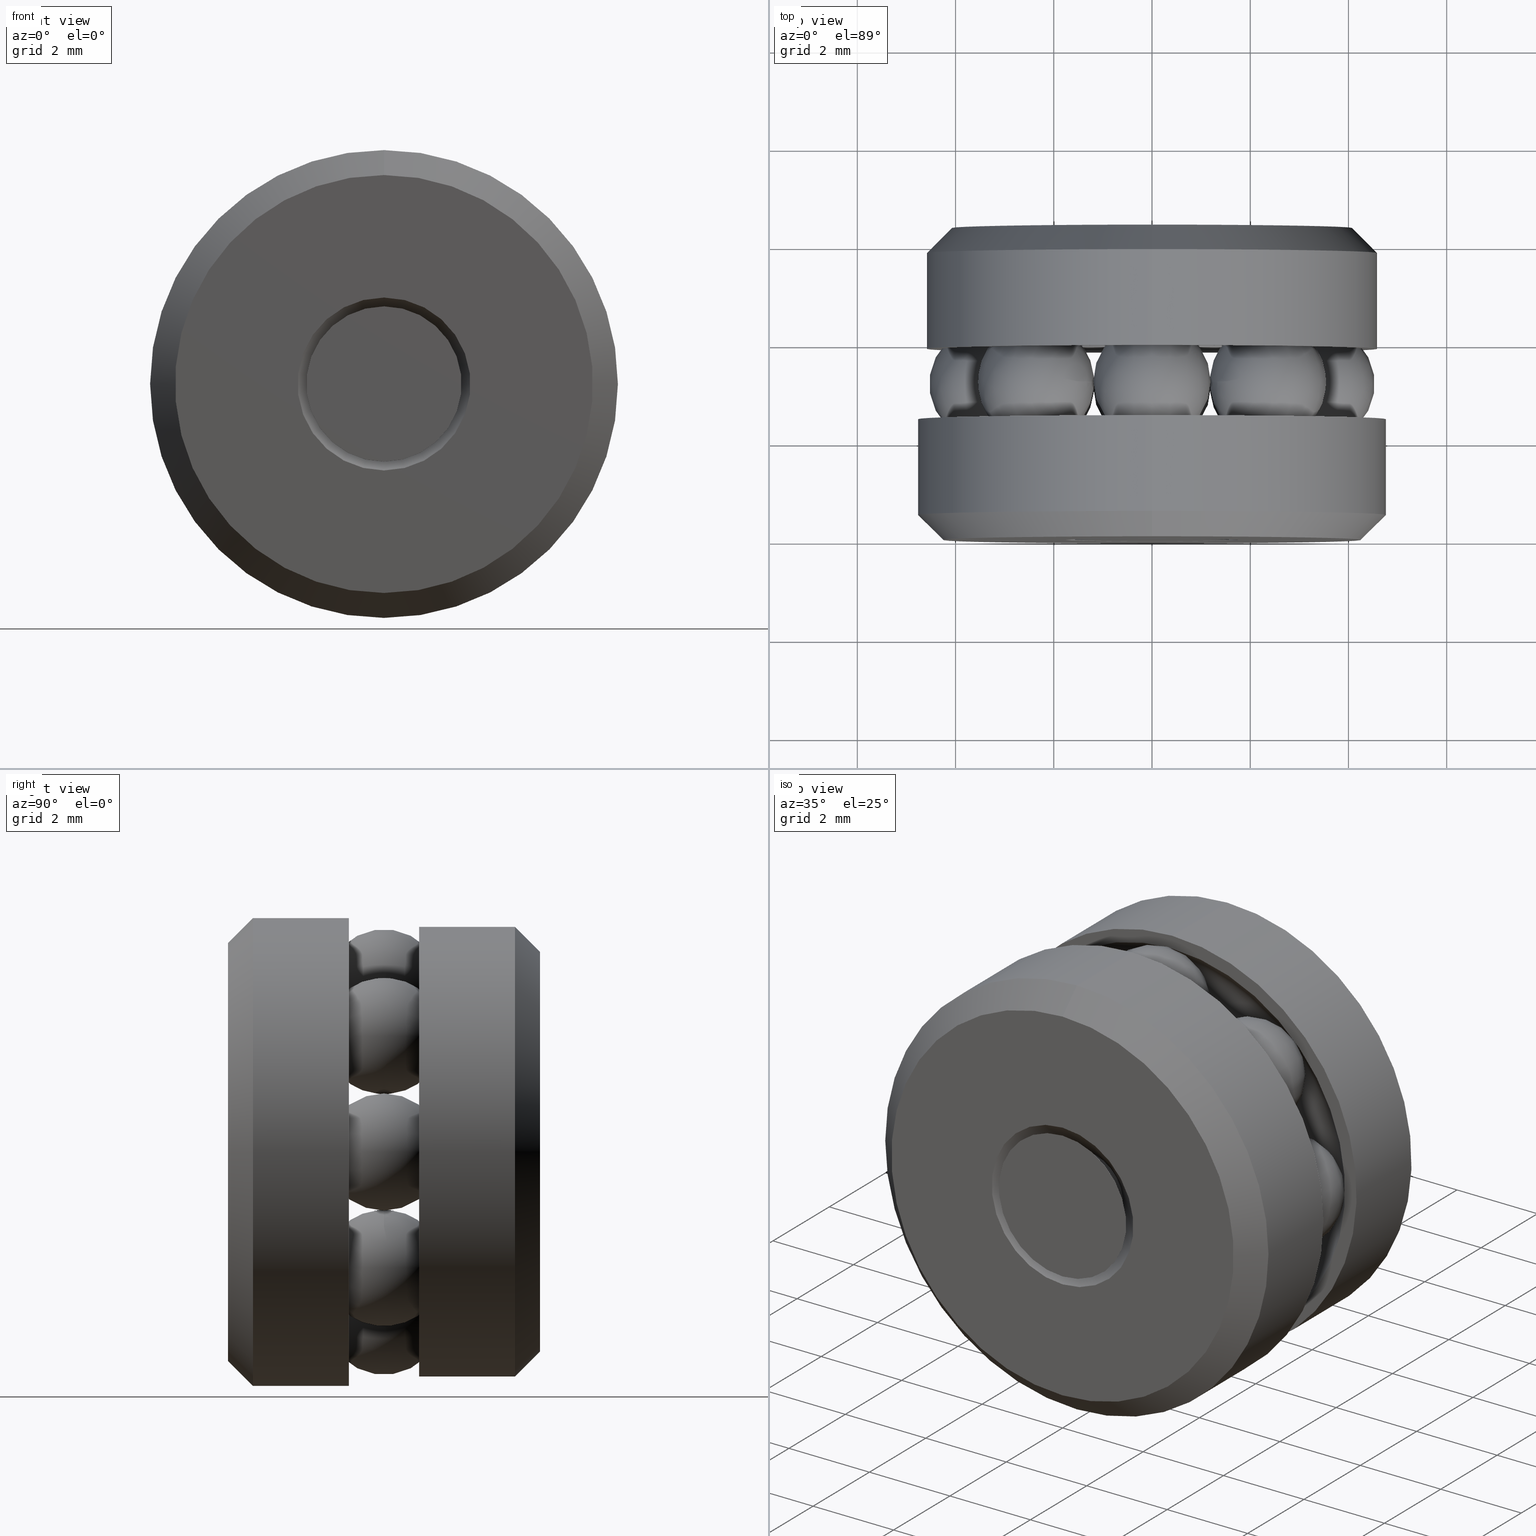
[diagram: canonical four-view strip — front | top / right | iso, engineering-drawing reading convention]
A machine part, canonical four-view strip (front | top / right | iso — engineering-drawing reading convention). The complete STEP part file that produces these views, byte-faithful:
ISO-10303-21;
HEADER;
FILE_DESCRIPTION (( 'STEP AP203' ),
    '1' );
FILE_NAME ('T-114RG_T-114RG-0006.step',
    '2016-02-04T15:34:07',
    ( '' ),
    ( '' ),
    'SwSTEP 2.0',
    'SolidWorks 2016',
    '' );
FILE_SCHEMA (( 'CONFIG_CONTROL_DESIGN' ));
ENDSEC;

DATA;
#1 = DIRECTION ( 'NONE',  ( -0.0000000000000000000, 1.000000000000000000, 0.0000000000000000000 ) ) ;
#2 = ORIENTED_EDGE ( 'NONE', *, *, #201, .F. ) ;
#3 = CALENDAR_DATE ( 2016, 4, 2 ) ;
#4 = ORIENTED_EDGE ( 'NONE', *, *, #308, .F. ) ;
#5 = CONICAL_SURFACE ( 'NONE', #554, 0.1605000000000001100, 0.7853981633974397300 ) ;
#6 = TOROIDAL_SURFACE ( 'NONE', #32, 0.1314999999999999800, 0.04700000000000000700 ) ;
#7 = FACE_OUTER_BOUND ( 'NONE', #297, .T. ) ;
#8 = CARTESIAN_POINT ( 'NONE',  ( -0.1875000000000000300, 0.09679999999999996900, 0.0000000000000000000 ) ) ;
#9 = PRODUCT_DEFINITION_FORMATION_WITH_SPECIFIED_SOURCE ( 'ANY', '', #94, .NOT_KNOWN. ) ;
#10 = EDGE_LOOP ( 'NONE', ( #453 ) ) ;
#11 = CYLINDRICAL_SURFACE ( 'NONE', #204, 0.1804999999999999900 ) ;
#12 = AXIS2_PLACEMENT_3D ( 'NONE', #506, #440, #464 ) ;
#13 = PERSON_AND_ORGANIZATION ( #137, #219 ) ;
#14 = FACE_OUTER_BOUND ( 'NONE', #36, .T. ) ;
#15 = DIRECTION ( 'NONE',  ( 0.0000000000000000000, 0.0000000000000000000, -1.000000000000000000 ) ) ;
#16 = AXIS2_PLACEMENT_3D ( 'NONE', #556, #60, #369 ) ;
#17 = EDGE_LOOP ( 'NONE', ( #289 ) ) ;
#18 = ORIENTED_EDGE ( 'NONE', *, *, #405, .T. ) ;
#19 = DIRECTION ( 'NONE',  ( 0.0000000000000000000, 0.0000000000000000000, 1.000000000000000000 ) ) ;
#20 = AXIS2_PLACEMENT_3D ( 'NONE', #153, #521, #424 ) ;
#21 = DIRECTION ( 'NONE',  ( 0.0000000000000000000, -0.0000000000000000000, -1.000000000000000000 ) ) ;
#22 = DIRECTION ( 'NONE',  ( 1.000000000000000000, 0.0000000000000000000, 0.0000000000000000000 ) ) ;
#23 = CARTESIAN_POINT ( 'NONE',  ( 4.591297960578719100E-016, 0.1249999999999999900, 0.1314999999999999800 ) ) ;
#24 = EDGE_LOOP ( 'NONE', ( #275 ) ) ;
#25 = ORIENTED_EDGE ( 'NONE', *, *, #230, .F. ) ;
#26 = CALENDAR_DATE ( 2016, 4, 2 ) ;
#27 = CARTESIAN_POINT ( 'NONE',  ( 0.0000000000000000000, 0.09679999999999996900, 0.0000000000000000000 ) ) ;
#28 = APPROVAL ( #491, 'UNSPECIFIED' ) ;
#29 = ADVANCED_FACE ( 'NONE', ( ), #228, .T. ) ;
#30 = DIRECTION ( 'NONE',  ( 0.0000000000000000000, -1.000000000000000000, 0.0000000000000000000 ) ) ;
#31 = CARTESIAN_POINT ( 'NONE',  ( 0.0000000000000000000, 0.03125000000000000700, 0.0000000000000000000 ) ) ;
#32 = AXIS2_PLACEMENT_3D ( 'NONE', #179, #336, #562 ) ;
#33 = APPLICATION_CONTEXT ( 'configuration controlled 3d designs of mechanical parts and assemblies' ) ;
#34 = ORIENTED_EDGE ( 'NONE', *, *, #532, .F. ) ;
#35 = CARTESIAN_POINT ( 'NONE',  ( 0.0000000000000000000, 0.09679999999999996900, 0.1690999999999999700 ) ) ;
#36 = EDGE_LOOP ( 'NONE', ( #277 ) ) ;
#37 = ADVANCED_FACE ( 'NONE', ( ), #72, .T. ) ;
#38 = DIRECTION ( 'NONE',  ( 0.0000000000000000000, -1.000000000000000000, 0.0000000000000000000 ) ) ;
#39 = FACE_OUTER_BOUND ( 'NONE', #325, .T. ) ;
#40 = DIRECTION ( 'NONE',  ( 0.0000000000000000000, 0.0000000000000000000, 1.000000000000000000 ) ) ;
#41 = CC_DESIGN_DATE_AND_TIME_ASSIGNMENT ( #563, #167, ( #188 ) ) ;
#42 = ADVANCED_FACE ( 'NONE', ( #225, #237 ), #353, .T. ) ;
#43 = CIRCLE ( 'NONE', #78, 0.03600000000000002500 ) ;
#44 = EDGE_LOOP ( 'NONE', ( #395 ) ) ;
#45 = CARTESIAN_POINT ( 'NONE',  ( 0.0000000000000000000, 0.1531999999999999800, 0.03600000000000002500 ) ) ;
#46 = ADVANCED_FACE ( 'NONE', ( #549, #212 ), #11, .T. ) ;
#47 = FACE_OUTER_BOUND ( 'NONE', #544, .T. ) ;
#48 = ADVANCED_FACE ( 'NONE', ( #218, #91 ), #193, .T. ) ;
#49 = EDGE_LOOP ( 'NONE', ( #465 ) ) ;
#50 = ORIENTED_EDGE ( 'NONE', *, *, #90, .T. ) ;
#51 = AXIS2_PLACEMENT_3D ( 'NONE', #31, #565, #97 ) ;
#52 = CARTESIAN_POINT ( 'NONE',  ( 0.0000000000000000000, 0.2187500000000000300, 0.0000000000000000000 ) ) ;
#53 = VERTEX_POINT ( 'NONE', #378 ) ;
#54 = FACE_BOUND ( 'NONE', #384, .T. ) ;
#55 = VERTEX_POINT ( 'NONE', #545 ) ;
#56 = AXIS2_PLACEMENT_3D ( 'NONE', #447, #392, #121 ) ;
#57 = PLANE ( 'NONE',  #448 ) ;
#58 = ORIENTED_EDGE ( 'NONE', *, *, #370, .F. ) ;
#59 = CLOSED_SHELL ( 'NONE', ( #291 ) ) ;
#60 = DIRECTION ( 'NONE',  ( -0.0000000000000000000, 1.000000000000000000, -0.0000000000000000000 ) ) ;
#61 = VERTEX_POINT ( 'NONE', #200 ) ;
#62 = CC_DESIGN_PERSON_AND_ORGANIZATION_ASSIGNMENT ( #171, #496, ( #9 ) ) ;
#63 = CARTESIAN_POINT ( 'NONE',  ( 0.0000000000000000000, 0.03332106781186544600, 0.0000000000000000000 ) ) ;
#64 = ORIENTED_EDGE ( 'NONE', *, *, #271, .F. ) ;
#65 = CARTESIAN_POINT ( 'NONE',  ( 0.0000000000000000000, 0.02000000000000017400, 0.1875000000000000300 ) ) ;
#66 = PERSON_AND_ORGANIZATION ( #137, #219 ) ;
#67 = AXIS2_PLACEMENT_3D ( 'NONE', #185, #361, #71 ) ;
#68 = CARTESIAN_POINT ( 'NONE',  ( 0.0000000000000000000, 0.2500000000000000000, 0.06932106781186513100 ) ) ;
#69 = VERTEX_POINT ( 'NONE', #216 ) ;
#70 = DIRECTION ( 'NONE',  ( -0.0000000000000000000, 1.000000000000000000, -0.0000000000000000000 ) ) ;
#71 = DIRECTION ( 'NONE',  ( 0.0000000000000000000, 0.0000000000000000000, 1.000000000000000000 ) ) ;
#72 = SPHERICAL_SURFACE ( 'NONE', #114, 0.04699999999999998600 ) ;
#73 = DIRECTION ( 'NONE',  ( 0.7071067811865537900, -0.0000000000000000000, 0.7071067811865413600 ) ) ;
#74 = CC_DESIGN_PERSON_AND_ORGANIZATION_ASSIGNMENT ( #143, #499, ( #9 ) ) ;
#75 = LOCAL_TIME ( 10, 34, 7.000000000000000000, #187 ) ;
#76 = CARTESIAN_POINT ( 'NONE',  ( 0.0000000000000000000, 0.2499999999999999700, 0.1605000000000001100 ) ) ;
#77 = CONICAL_SURFACE ( 'NONE', #184, 0.03600000000000003900, 0.7853981633974430600 ) ;
#78 = AXIS2_PLACEMENT_3D ( 'NONE', #490, #530, #274 ) ;
#79 = MANIFOLD_SOLID_BREP ( 'BALLS[7]', #494 ) ;
#80 = DIRECTION ( 'NONE',  ( 0.0000000000000000000, 0.0000000000000000000, 1.000000000000000000 ) ) ;
#81 = FACE_BOUND ( 'NONE', #243, .T. ) ;
#82 = AXIS2_PLACEMENT_3D ( 'NONE', #528, #38, #15 ) ;
#83 = ADVANCED_FACE ( 'NONE', ( #217, #197 ), #169, .T. ) ;
#84 = CC_DESIGN_PERSON_AND_ORGANIZATION_ASSIGNMENT ( #264, #126, ( #546 ) ) ;
#85 = AXIS2_PLACEMENT_3D ( 'NONE', #190, #238, #173 ) ;
#86 = CARTESIAN_POINT ( 'NONE',  ( 0.0000000000000000000, -2.325607307416975900E-017, 0.0000000000000000000 ) ) ;
#87 = SPHERICAL_SURFACE ( 'NONE', #417, 0.04699999999999998600 ) ;
#88 = DIRECTION ( 'NONE',  ( 0.0000000000000000000, -0.0000000000000000000, -1.000000000000000000 ) ) ;
#89 = PLANE ( 'NONE',  #510 ) ;
#90 = EDGE_CURVE ( 'NONE', #335, #335, #181, .T. ) ;
#91 = FACE_OUTER_BOUND ( 'NONE', #480, .T. ) ;
#92 = EDGE_LOOP ( 'NONE', ( #487 ) ) ;
#93 = DIRECTION ( 'NONE',  ( -0.0000000000000000000, 1.000000000000000000, -0.0000000000000000000 ) ) ;
#94 = PRODUCT ( 'T-114RG_T-114RG-0006', 'T-114RG_T-114RG-0006', '', ( #352 ) ) ;
#95 = AXIS2_PLACEMENT_3D ( 'NONE', #102, #318, #413 ) ;
#96 = FACE_OUTER_BOUND ( 'NONE', #24, .T. ) ;
#97 = DIRECTION ( 'NONE',  ( 0.0000000000000000000, 0.0000000000000000000, -1.000000000000000000 ) ) ;
#98 = FACE_OUTER_BOUND ( 'NONE', #477, .T. ) ;
#99 = LOCAL_TIME ( 10, 34, 7.000000000000000000, #306 ) ;
#100 = FACE_BOUND ( 'NONE', #379, .T. ) ;
#101 = CIRCLE ( 'NONE', #407, 0.1875000000000000300 ) ;
#102 = CARTESIAN_POINT ( 'NONE',  ( -0.06224999999999970800, 0.0000000000000000000, 0.0000000000000000000 ) ) ;
#103 = AXIS2_PLACEMENT_3D ( 'NONE', #303, #553, #333 ) ;
#104 = CYLINDRICAL_SURFACE ( 'NONE', #508, 0.03600000000000003200 ) ;
#105 = AXIS2_PLACEMENT_3D ( 'NONE', #196, #533, #163 ) ;
#106 = DATE_TIME_ROLE ( 'classification_date' ) ;
#107 = DIRECTION ( 'NONE',  ( 0.0000000000000000000, 0.0000000000000000000, 1.000000000000000000 ) ) ;
#108 = CARTESIAN_POINT ( 'NONE',  ( 0.0000000000000000000, 0.02000000000000017400, 0.0000000000000000000 ) ) ;
#109 = FACE_OUTER_BOUND ( 'NONE', #270, .T. ) ;
#110 = FACE_OUTER_BOUND ( 'NONE', #284, .T. ) ;
#111 = CLOSED_SHELL ( 'NONE', ( #37 ) ) ;
#112 = PERSON_AND_ORGANIZATION ( #137, #219 ) ;
#113 = APPROVAL_PERSON_ORGANIZATION ( #13, #519, #189 ) ;
#114 = AXIS2_PLACEMENT_3D ( 'NONE', #263, #73, #535 ) ;
#115 = ADVANCED_FACE ( 'NONE', ( #192, #202 ), #559, .T. ) ;
#116 = CARTESIAN_POINT ( 'NONE',  ( -0.1314999999999999800, 0.1249999999999999900, 0.0000000000000000000 ) ) ;
#117 = DIRECTION ( 'NONE',  ( -0.7071067811865486800, 0.0000000000000000000, -0.7071067811865463500 ) ) ;
#118 = ADVANCED_FACE ( 'NONE', ( #182, #159 ), #516, .T. ) ;
#119 = FACE_OUTER_BOUND ( 'NONE', #312, .T. ) ;
#120 = APPROVAL_PERSON_ORGANIZATION ( #112, #488, #235 ) ;
#121 = DIRECTION ( 'NONE',  ( 0.0000000000000000000, 0.0000000000000000000, 1.000000000000000000 ) ) ;
#122 = FACE_BOUND ( 'NONE', #441, .T. ) ;
#123 = PLANE ( 'NONE',  #282 ) ;
#124 = FACE_OUTER_BOUND ( 'NONE', #372, .T. ) ;
#125 = FACE_OUTER_BOUND ( 'NONE', #170, .T. ) ;
#126 = PERSON_AND_ORGANIZATION_ROLE ( 'classification_officer' ) ;
#127 = AXIS2_PLACEMENT_3D ( 'NONE', #543, #214, #22 ) ;
#128 = SPHERICAL_SURFACE ( 'NONE', #473, 0.04699999999999998600 ) ;
#129 = EDGE_LOOP ( 'NONE', ( #339 ) ) ;
#130 = AXIS2_PLACEMENT_3D ( 'NONE', #422, #376, #206 ) ;
#131 = PLANE ( 'NONE',  #95 ) ;
#132 = VERTEX_POINT ( 'NONE', #76 ) ;
#133 = AXIS2_PLACEMENT_3D ( 'NONE', #116, #344, #349 ) ;
#134 = SPHERICAL_SURFACE ( 'NONE', #232, 0.04699999999999998600 ) ;
#135 = APPROVAL_DATE_TIME ( #315, #28 ) ;
#136 = SPHERICAL_SURFACE ( 'NONE', #178, 0.04699999999999998600 ) ;
#137 = PERSON ( 'UNSPECIFIED', 'UNSPECIFIED', 'UNSPECIFIED', ('UNSPECIFIED'), ('UNSPECIFIED'), ('UNSPECIFIED') ) ;
#138 = FACE_OUTER_BOUND ( 'NONE', #44, .T. ) ;
#139 = DIRECTION ( 'NONE',  ( 0.0000000000000000000, 0.0000000000000000000, 1.000000000000000000 ) ) ;
#140 = FACE_BOUND ( 'NONE', #252, .T. ) ;
#141 = PLANE ( 'NONE',  #446 ) ;
#142 = CIRCLE ( 'NONE', #391, 0.03600000000000000400 ) ;
#143 = PERSON_AND_ORGANIZATION ( #137, #219 ) ;
#144 = DIRECTION ( 'NONE',  ( -0.0000000000000000000, 1.000000000000000000, -0.0000000000000000000 ) ) ;
#145 = EDGE_CURVE ( 'NONE', #259, #259, #186, .T. ) ;
#146 = CC_DESIGN_PERSON_AND_ORGANIZATION_ASSIGNMENT ( #66, #332, ( #188 ) ) ;
#147 = AXIS2_PLACEMENT_3D ( 'NONE', #166, #268, #461 ) ;
#148 = CARTESIAN_POINT ( 'NONE',  ( 0.0000000000000000000, -4.375673094460632500E-019, 0.06932106781186508900 ) ) ;
#149 = AXIS2_PLACEMENT_3D ( 'NONE', #300, #250, #396 ) ;
#150 = ORIENTED_EDGE ( 'NONE', *, *, #271, .T. ) ;
#151 = CIRCLE ( 'NONE', #564, 0.03100000000000003400 ) ;
#152 = DIRECTION ( 'NONE',  ( -0.0000000000000000000, 1.000000000000000000, -0.0000000000000000000 ) ) ;
#153 = CARTESIAN_POINT ( 'NONE',  ( 0.0000000000000000000, 0.2499999999999999700, 0.0000000000000000000 ) ) ;
#154 = CIRCLE ( 'NONE', #16, 0.1690999999999999700 ) ;
#155 = FACE_OUTER_BOUND ( 'NONE', #412, .T. ) ;
#156 = CLOSED_SHELL ( 'NONE', ( #397, #401, #476, #48, #356 ) ) ;
#157 = AXIS2_PLACEMENT_3D ( 'NONE', #402, #265, #467 ) ;
#158 = DIRECTION ( 'NONE',  ( -0.0000000000000000000, 1.000000000000000000, -0.0000000000000000000 ) ) ;
#159 = FACE_BOUND ( 'NONE', #377, .T. ) ;
#160 = CIRCLE ( 'NONE', #329, 0.06932106781186508900 ) ;
#161 = DIRECTION ( 'NONE',  ( 0.0000000000000000000, 0.0000000000000000000, 1.000000000000000000 ) ) ;
#162 = CARTESIAN_POINT ( 'NONE',  ( 0.0000000000000000000, 0.1531999999999999800, 0.0000000000000000000 ) ) ;
#163 = DIRECTION ( 'NONE',  ( -1.000000000000000000, 0.0000000000000000000, 6.982962677686265100E-015 ) ) ;
#164 = CIRCLE ( 'NONE', #338, 0.1675000000000000100 ) ;
#165 = VERTEX_POINT ( 'NONE', #242 ) ;
#166 = CARTESIAN_POINT ( 'NONE',  ( 0.0000000000000000000, 0.0000000000000000000, 0.0000000000000000000 ) ) ;
#167 = DATE_TIME_ROLE ( 'creation_date' ) ;
#168 = CARTESIAN_POINT ( 'NONE',  ( 0.0000000000000000000, 0.2299999999999997300, 0.1804999999999999900 ) ) ;
#169 = CONICAL_SURFACE ( 'NONE', #267, 0.1875000000000000300, 0.7853981633974431700 ) ;
#170 = EDGE_LOOP ( 'NONE', ( #257 ) ) ;
#171 = PERSON_AND_ORGANIZATION ( #137, #219 ) ;
#172 = CONICAL_SURFACE ( 'NONE', #51, 0.03100000000000000000, 0.7853981633974437300 ) ;
#173 = DIRECTION ( 'NONE',  ( -0.7071067811865512400, 0.0000000000000000000, -0.7071067811865438000 ) ) ;
#174 = EDGE_CURVE ( 'NONE', #222, #222, #43, .T. ) ;
#175 = ADVANCED_FACE ( 'NONE', ( #155, #140 ), #57, .T. ) ;
#176 = CC_DESIGN_APPROVAL ( #28, ( #188 ) ) ;
#177 = MANIFOLD_SOLID_BREP ( 'Revolve3', #262 ) ;
#178 = AXIS2_PLACEMENT_3D ( 'NONE', #471, #414, #302 ) ;
#179 = CARTESIAN_POINT ( 'NONE',  ( 0.0000000000000000000, 0.1250000000000000000, 0.0000000000000000000 ) ) ;
#180 = PRODUCT_RELATED_PRODUCT_CATEGORY ( 'detail', '', ( #94 ) ) ;
#181 = CIRCLE ( 'NONE', #12, 0.1804999999999999900 ) ;
#182 = FACE_OUTER_BOUND ( 'NONE', #92, .T. ) ;
#183 = DIRECTION ( 'NONE',  ( 0.7071067811865463500, 0.0000000000000000000, -0.7071067811865486800 ) ) ;
#184 = AXIS2_PLACEMENT_3D ( 'NONE', #247, #457, #534 ) ;
#185 = CARTESIAN_POINT ( 'NONE',  ( 0.0000000000000000000, 0.09679999999999999700, 0.0000000000000000000 ) ) ;
#186 = CIRCLE ( 'NONE', #540, 0.1875000000000000300 ) ;
#187 = COORDINATED_UNIVERSAL_TIME_OFFSET ( 5, 0, .BEHIND. ) ;
#188 = PRODUCT_DEFINITION ( 'UNKNOWN', '', #9, #254 ) ;
#189 = APPROVAL_ROLE ( '' ) ;
#190 = CARTESIAN_POINT ( 'NONE',  ( 0.09298454172603147500, 0.1249999999999999900, 0.09298454172603050300 ) ) ;
#191 = AXIS2_PLACEMENT_3D ( 'NONE', #419, #373, #40 ) ;
#192 = FACE_BOUND ( 'NONE', #49, .T. ) ;
#193 = CYLINDRICAL_SURFACE ( 'NONE', #147, 0.03100000000000001700 ) ;
#194 = FACE_OUTER_BOUND ( 'NONE', #455, .T. ) ;
#195 = FACE_BOUND ( 'NONE', #10, .T. ) ;
#196 = CARTESIAN_POINT ( 'NONE',  ( 0.1314999999999999800, 0.1249999999999999900, -9.182595921157438100E-016 ) ) ;
#197 = FACE_OUTER_BOUND ( 'NONE', #269, .T. ) ;
#198 = DIRECTION ( 'NONE',  ( -0.0000000000000000000, 1.000000000000000000, -0.0000000000000000000 ) ) ;
#199 = VERTEX_POINT ( 'NONE', #68 ) ;
#200 = CARTESIAN_POINT ( 'NONE',  ( 0.0000000000000000000, 0.03125000000000000700, 0.03100000000000000000 ) ) ;
#201 = EDGE_CURVE ( 'NONE', #523, #523, #151, .T. ) ;
#202 = FACE_OUTER_BOUND ( 'NONE', #17, .T. ) ;
#203 = ORIENTED_EDGE ( 'NONE', *, *, #552, .F. ) ;
#204 = AXIS2_PLACEMENT_3D ( 'NONE', #286, #144, #287 ) ;
#205 = ADVANCED_FACE ( 'NONE', ( ), #136, .T. ) ;
#206 = DIRECTION ( 'NONE',  ( 0.0000000000000000000, 0.0000000000000000000, 1.000000000000000000 ) ) ;
#207 = FACE_OUTER_BOUND ( 'NONE', #527, .T. ) ;
#208 = DIRECTION ( 'NONE',  ( -0.0000000000000000000, 1.000000000000000000, 0.0000000000000000000 ) ) ;
#209 = AXIS2_PLACEMENT_3D ( 'NONE', #215, #479, #227 ) ;
#210 = ADVANCED_FACE ( 'NONE', ( ), #134, .T. ) ;
#211 = CARTESIAN_POINT ( 'NONE',  ( 0.0000000000000000000, 0.1531999999999999800, 0.0000000000000000000 ) ) ;
#212 = FACE_OUTER_BOUND ( 'NONE', #382, .T. ) ;
#213 = DIRECTION ( 'NONE',  ( -0.0000000000000000000, 1.000000000000000000, -0.0000000000000000000 ) ) ;
#214 = DIRECTION ( 'NONE',  ( 0.0000000000000000000, 0.0000000000000000000, 1.000000000000000000 ) ) ;
#215 = CARTESIAN_POINT ( 'NONE',  ( 0.0000000000000000000, 0.1250000000000000000, 0.0000000000000000000 ) ) ;
#216 = CARTESIAN_POINT ( 'NONE',  ( 0.0000000000000000000, 0.09679999999999996900, 0.1875000000000000300 ) ) ;
#217 = FACE_BOUND ( 'NONE', #327, .T. ) ;
#218 = FACE_OUTER_BOUND ( 'NONE', #239, .T. ) ;
#219 = ORGANIZATION ( 'UNSPECIFIED', 'UNSPECIFIED', '' ) ;
#220 = AXIS2_PLACEMENT_3D ( 'NONE', #482, #213, #240 ) ;
#221 = CARTESIAN_POINT ( 'NONE',  ( 0.0000000000000000000, 0.0000000000000000000, 0.0000000000000000000 ) ) ;
#222 = VERTEX_POINT ( 'NONE', #45 ) ;
#223 = DIRECTION ( 'NONE',  ( 0.0000000000000000000, 0.0000000000000000000, 1.000000000000000000 ) ) ;
#224 = LOCAL_TIME ( 10, 34, 7.000000000000000000, #456 ) ;
#225 = FACE_OUTER_BOUND ( 'NONE', #241, .T. ) ;
#226 = CIRCLE ( 'NONE', #130, 0.09389999999999998300 ) ;
#227 = DIRECTION ( 'NONE',  ( 0.0000000000000000000, 0.0000000000000000000, 1.000000000000000000 ) ) ;
#228 = SPHERICAL_SURFACE ( 'NONE', #85, 0.04699999999999998600 ) ;
#229 = CLOSED_SHELL ( 'NONE', ( #205 ) ) ;
#230 = EDGE_CURVE ( 'NONE', #470, #470, #160, .T. ) ;
#231 = CC_DESIGN_PERSON_AND_ORGANIZATION_ASSIGNMENT ( #551, #261, ( #94 ) ) ;
#232 = AXIS2_PLACEMENT_3D ( 'NONE', #437, #117, #183 ) ;
#233 = MANIFOLD_SOLID_BREP ( 'Revolve2[2]', #503 ) ;
#234 = CIRCLE ( 'NONE', #67, 0.09389999999999998300 ) ;
#235 = APPROVAL_ROLE ( '' ) ;
#236 = APPLICATION_CONTEXT ( 'configuration controlled 3d designs of mechanical parts and assemblies' ) ;
#237 = FACE_BOUND ( 'NONE', #298, .T. ) ;
#238 = DIRECTION ( 'NONE',  ( -0.7071067811865438000, 0.0000000000000000000, 0.7071067811865512400 ) ) ;
#239 = EDGE_LOOP ( 'NONE', ( #355 ) ) ;
#240 = DIRECTION ( 'NONE',  ( 0.0000000000000000000, 0.0000000000000000000, 1.000000000000000000 ) ) ;
#241 = EDGE_LOOP ( 'NONE', ( #313 ) ) ;
#242 = CARTESIAN_POINT ( 'NONE',  ( 0.0000000000000000000, 0.1531999999999999800, 0.1690999999999999700 ) ) ;
#243 = EDGE_LOOP ( 'NONE', ( #150 ) ) ;
#244 = CALENDAR_DATE ( 2016, 4, 2 ) ;
#245 = ADVANCED_FACE ( 'NONE', ( ), #128, .T. ) ;
#246 = AXIS2_PLACEMENT_3D ( 'NONE', #539, #429, #276 ) ;
#247 = CARTESIAN_POINT ( 'NONE',  ( 0.0000000000000000000, 0.2166789321881345500, 0.0000000000000000000 ) ) ;
#248 = ADVANCED_FACE ( 'NONE', ( #110, #119 ), #104, .F. ) ;
#249 = DIRECTION ( 'NONE',  ( -0.0000000000000000000, 1.000000000000000000, -0.0000000000000000000 ) ) ;
#250 = DIRECTION ( 'NONE',  ( -0.0000000000000000000, 1.000000000000000000, -0.0000000000000000000 ) ) ;
#251 = ADVANCED_FACE ( 'NONE', ( #122, #98 ), #141, .T. ) ;
#252 = EDGE_LOOP ( 'NONE', ( #409 ) ) ;
#253 = COORDINATED_UNIVERSAL_TIME_OFFSET ( 5, 0, .BEHIND. ) ;
#254 = DESIGN_CONTEXT ( 'detailed design', #236, 'design' ) ;
#255 = DIRECTION ( 'NONE',  ( 0.0000000000000000000, 0.0000000000000000000, 1.000000000000000000 ) ) ;
#256 = MANIFOLD_SOLID_BREP ( 'BALLS[5]', #111 ) ;
#257 = ORIENTED_EDGE ( 'NONE', *, *, #308, .T. ) ;
#258 = ADVANCED_FACE ( 'NONE', ( ), #87, .T. ) ;
#259 = VERTEX_POINT ( 'NONE', #65 ) ;
#260 = ADVANCED_FACE ( 'NONE', ( #81, #109 ), #309, .F. ) ;
#261 = PERSON_AND_ORGANIZATION_ROLE ( 'design_owner' ) ;
#262 = CLOSED_SHELL ( 'NONE', ( #319 ) ) ;
#263 = CARTESIAN_POINT ( 'NONE',  ( 0.09298454172603018400, 0.1249999999999999900, -0.09298454172603179400 ) ) ;
#264 = PERSON_AND_ORGANIZATION ( #137, #219 ) ;
#265 = DIRECTION ( 'NONE',  ( -0.0000000000000000000, 1.000000000000000000, 0.0000000000000000000 ) ) ;
#266 = LENGTH_MEASURE_WITH_UNIT ( LENGTH_MEASURE( 0.02539999999999999900 ), #504 );
#267 = AXIS2_PLACEMENT_3D ( 'NONE', #108, #198, #520 ) ;
#268 = DIRECTION ( 'NONE',  ( -0.0000000000000000000, 1.000000000000000000, -0.0000000000000000000 ) ) ;
#269 = EDGE_LOOP ( 'NONE', ( #495 ) ) ;
#270 = EDGE_LOOP ( 'NONE', ( #25 ) ) ;
#271 = EDGE_CURVE ( 'NONE', #316, #316, #142, .T. ) ;
#272 = DIRECTION ( 'NONE',  ( -0.0000000000000000000, 1.000000000000000000, -0.0000000000000000000 ) ) ;
#273 = CARTESIAN_POINT ( 'NONE',  ( 0.0000000000000000000, 0.2166789321881345500, 0.0000000000000000000 ) ) ;
#274 = DIRECTION ( 'NONE',  ( 0.0000000000000000000, 0.0000000000000000000, 1.000000000000000000 ) ) ;
#275 = ORIENTED_EDGE ( 'NONE', *, *, #486, .T. ) ;
#276 = DIRECTION ( 'NONE',  ( 0.0000000000000000000, 0.0000000000000000000, 1.000000000000000000 ) ) ;
#277 = ORIENTED_EDGE ( 'NONE', *, *, #145, .T. ) ;
#278 = CARTESIAN_POINT ( 'NONE',  ( 0.0000000000000000000, 0.03332106781186544600, 0.03600000000000000400 ) ) ;
#279 = FACE_OUTER_BOUND ( 'NONE', #288, .T. ) ;
#280 = CARTESIAN_POINT ( 'NONE',  ( 0.0000000000000000000, 0.2187500000000000300, 0.03100000000000003400 ) ) ;
#281 = MANIFOLD_SOLID_BREP ( 'BALLS[4]', #59 ) ;
#282 = AXIS2_PLACEMENT_3D ( 'NONE', #343, #481, #283 ) ;
#283 = DIRECTION ( 'NONE',  ( 0.0000000000000000000, 0.0000000000000000000, 1.000000000000000000 ) ) ;
#284 = EDGE_LOOP ( 'NONE', ( #18 ) ) ;
#285 = CYLINDRICAL_SURFACE ( 'NONE', #331, 0.03600000000000001100 ) ;
#286 = CARTESIAN_POINT ( 'NONE',  ( 0.0000000000000000000, 0.0000000000000000000, 0.0000000000000000000 ) ) ;
#287 = DIRECTION ( 'NONE',  ( 0.0000000000000000000, 0.0000000000000000000, 1.000000000000000000 ) ) ;
#288 = EDGE_LOOP ( 'NONE', ( #64 ) ) ;
#289 = ORIENTED_EDGE ( 'NONE', *, *, #536, .F. ) ;
#290 = SPHERICAL_SURFACE ( 'NONE', #105, 0.04699999999999998600 ) ;
#291 = ADVANCED_FACE ( 'NONE', ( ), #290, .T. ) ;
#292 = CIRCLE ( 'NONE', #56, 0.06224999999999975000 ) ;
#293 = CARTESIAN_POINT ( 'NONE',  ( 0.0000000000000000000, 0.09680000000000002500, 0.03600000000000001100 ) ) ;
#294 = EDGE_CURVE ( 'NONE', #53, #53, #458, .T. ) ;
#295 = CARTESIAN_POINT ( 'NONE',  ( 0.0000000000000000000, 0.2500000000000000000, 0.06224999999999975000 ) ) ;
#296 = AXIS2_PLACEMENT_3D ( 'NONE', #8, #208, #19 ) ;
#297 = EDGE_LOOP ( 'NONE', ( #350 ) ) ;
#298 = EDGE_LOOP ( 'NONE', ( #4 ) ) ;
#299 = APPROVAL_PERSON_ORGANIZATION ( #328, #28, #524 ) ;
#300 = CARTESIAN_POINT ( 'NONE',  ( 0.0000000000000000000, 0.09680000000000002500, 0.0000000000000000000 ) ) ;
#301 = MANIFOLD_SOLID_BREP ( 'BALLS[1]', #442 ) ;
#302 = DIRECTION ( 'NONE',  ( 1.047444401652939800E-014, 0.0000000000000000000, 1.000000000000000000 ) ) ;
#303 = CARTESIAN_POINT ( 'NONE',  ( -0.06932106781186508900, -1.184682019180791200E-017, 0.0000000000000000000 ) ) ;
#304 = DIMENSIONAL_EXPONENTS ( 1.000000000000000000, 0.0000000000000000000, 0.0000000000000000000, 0.0000000000000000000, 0.0000000000000000000, 0.0000000000000000000, 0.0000000000000000000 ) ;
#305 = CLOSED_SHELL ( 'NONE', ( #245 ) ) ;
#306 = COORDINATED_UNIVERSAL_TIME_OFFSET ( 5, 0, .BEHIND. ) ;
#307 = MANIFOLD_SOLID_BREP ( 'Revolve2[1]', #156 ) ;
#308 = EDGE_CURVE ( 'NONE', #346, #346, #154, .T. ) ;
#309 = CONICAL_SURFACE ( 'NONE', #82, 0.06932106781186508900, 0.7853981633974428400 ) ;
#310 = CARTESIAN_POINT ( 'NONE',  ( 0.0000000000000000000, 0.0000000000000000000, 0.0000000000000000000 ) ) ;
#311 = AXIS2_PLACEMENT_3D ( 'NONE', #162, #438, #326 ) ;
#312 = EDGE_LOOP ( 'NONE', ( #415 ) ) ;
#313 = ORIENTED_EDGE ( 'NONE', *, *, #552, .T. ) ;
#314 = DIRECTION ( 'NONE',  ( -0.0000000000000000000, 1.000000000000000000, -0.0000000000000000000 ) ) ;
#315 = DATE_AND_TIME ( #444, #459 ) ;
#316 = VERTEX_POINT ( 'NONE', #278 ) ;
#317 = VERTEX_POINT ( 'NONE', #454 ) ;
#318 = DIRECTION ( 'NONE',  ( 0.0000000000000000000, -1.000000000000000000, 0.0000000000000000000 ) ) ;
#319 = ADVANCED_FACE ( 'NONE', ( ), #358, .T. ) ;
#320 = ORIENTED_EDGE ( 'NONE', *, *, #201, .T. ) ;
#321 = DIRECTION ( 'NONE',  ( 0.0000000000000000000, 0.0000000000000000000, 1.000000000000000000 ) ) ;
#322 = CIRCLE ( 'NONE', #20, 0.1605000000000001100 ) ;
#323 = DIRECTION ( 'NONE',  ( 0.0000000000000000000, 0.0000000000000000000, 1.000000000000000000 ) ) ;
#324 = DIRECTION ( 'NONE',  ( 0.0000000000000000000, 0.0000000000000000000, 1.000000000000000000 ) ) ;
#325 = EDGE_LOOP ( 'NONE', ( #203 ) ) ;
#326 = DIRECTION ( 'NONE',  ( 0.0000000000000000000, 0.0000000000000000000, 1.000000000000000000 ) ) ;
#327 = EDGE_LOOP ( 'NONE', ( #365 ) ) ;
#328 = PERSON_AND_ORGANIZATION ( #137, #219 ) ;
#329 = AXIS2_PLACEMENT_3D ( 'NONE', #548, #505, #80 ) ;
#330 = CYLINDRICAL_SURFACE ( 'NONE', #191, 0.1875000000000000300 ) ;
#331 = AXIS2_PLACEMENT_3D ( 'NONE', #221, #314, #492 ) ;
#332 = PERSON_AND_ORGANIZATION_ROLE ( 'creator' ) ;
#333 = DIRECTION ( 'NONE',  ( 0.0000000000000000000, -0.0000000000000000000, -1.000000000000000000 ) ) ;
#334 = CLOSED_SHELL ( 'NONE', ( #29 ) ) ;
#335 = VERTEX_POINT ( 'NONE', #168 ) ;
#336 = DIRECTION ( 'NONE',  ( -0.0000000000000000000, 1.000000000000000000, -0.0000000000000000000 ) ) ;
#337 = APPROVAL_STATUS ( 'not_yet_approved' ) ;
#338 = AXIS2_PLACEMENT_3D ( 'NONE', #86, #484, #223 ) ;
#339 = ORIENTED_EDGE ( 'NONE', *, *, #294, .F. ) ;
#340 = EDGE_LOOP ( 'NONE', ( #485 ) ) ;
#341 = LOCAL_TIME ( 10, 34, 7.000000000000000000, #253 ) ;
#342 = ADVANCED_FACE ( 'NONE', ( #531, #54 ), #5, .T. ) ;
#343 = CARTESIAN_POINT ( 'NONE',  ( 0.0000000000000000000, 0.2500000000000000000, 0.0000000000000000000 ) ) ;
#344 = DIRECTION ( 'NONE',  ( 0.0000000000000000000, 0.0000000000000000000, -1.000000000000000000 ) ) ;
#345 = MANIFOLD_SOLID_BREP ( 'Revolve2[3]', #404 ) ;
#346 = VERTEX_POINT ( 'NONE', #35 ) ;
#347 = FACE_OUTER_BOUND ( 'NONE', #363, .T. ) ;
#348 = DIRECTION ( 'NONE',  ( -3.491481338843132600E-015, 0.0000000000000000000, -1.000000000000000000 ) ) ;
#349 = DIRECTION ( 'NONE',  ( 1.000000000000000000, 0.0000000000000000000, 0.0000000000000000000 ) ) ;
#350 = ORIENTED_EDGE ( 'NONE', *, *, #357, .T. ) ;
#351 = VERTEX_POINT ( 'NONE', #547 ) ;
#352 = MECHANICAL_CONTEXT ( 'NONE', #33, 'mechanical' ) ;
#353 = PLANE ( 'NONE',  #296 ) ;
#354 = ORIENTED_EDGE ( 'NONE', *, *, #357, .F. ) ;
#355 = ORIENTED_EDGE ( 'NONE', *, *, #452, .T. ) ;
#356 = ADVANCED_FACE ( 'NONE', ( #347, #100 ), #172, .T. ) ;
#357 = EDGE_CURVE ( 'NONE', #421, #421, #292, .T. ) ;
#358 = SPHERICAL_SURFACE ( 'NONE', #133, 0.04699999999999998600 ) ;
#359 = AXIS2_PLACEMENT_3D ( 'NONE', #398, #249, #255 ) ;
#360 =( NAMED_UNIT ( * ) PLANE_ANGLE_UNIT ( ) SI_UNIT ( $, .RADIAN. ) );
#361 = DIRECTION ( 'NONE',  ( -0.0000000000000000000, 1.000000000000000000, -0.0000000000000000000 ) ) ;
#362 = UNCERTAINTY_MEASURE_WITH_UNIT (LENGTH_MEASURE( 1.000000000000000100E-005 ), #364, 'distance_accuracy_value', 'NONE');
#363 = EDGE_LOOP ( 'NONE', ( #538 ) ) ;
#364 =( CONVERSION_BASED_UNIT ( 'INCH', #266 ) LENGTH_UNIT ( ) NAMED_UNIT ( #304 ) );
#365 = ORIENTED_EDGE ( 'NONE', *, *, #536, .T. ) ;
#366 = ADVANCED_FACE ( 'NONE', ( #138, #498 ), #77, .F. ) ;
#367 = DIRECTION ( 'NONE',  ( 0.0000000000000000000, 0.0000000000000000000, 1.000000000000000000 ) ) ;
#368 = VERTEX_POINT ( 'NONE', #517 ) ;
#369 = DIRECTION ( 'NONE',  ( 0.0000000000000000000, 0.0000000000000000000, 1.000000000000000000 ) ) ;
#370 = EDGE_CURVE ( 'NONE', #132, #132, #322, .T. ) ;
#371 = ORIENTED_EDGE ( 'NONE', *, *, #452, .F. ) ;
#372 = EDGE_LOOP ( 'NONE', ( #433 ) ) ;
#373 = DIRECTION ( 'NONE',  ( -0.0000000000000000000, 1.000000000000000000, -0.0000000000000000000 ) ) ;
#374 = FACE_OUTER_BOUND ( 'NONE', #340, .T. ) ;
#375 = AXIS2_PLACEMENT_3D ( 'NONE', #513, #93, #497 ) ;
#376 = DIRECTION ( 'NONE',  ( -0.0000000000000000000, 1.000000000000000000, -0.0000000000000000000 ) ) ;
#377 = EDGE_LOOP ( 'NONE', ( #502 ) ) ;
#378 = CARTESIAN_POINT ( 'NONE',  ( 0.0000000000000000000, 0.0000000000000000000, 0.06224999999999970800 ) ) ;
#379 = EDGE_LOOP ( 'NONE', ( #371 ) ) ;
#380 = CARTESIAN_POINT ( 'NONE',  ( -0.1804999999999999900, 0.1531999999999999800, 0.0000000000000000000 ) ) ;
#381 = DIRECTION ( 'NONE',  ( 0.0000000000000000000, 0.0000000000000000000, -1.000000000000000000 ) ) ;
#382 = EDGE_LOOP ( 'NONE', ( #561 ) ) ;
#383 = DIRECTION ( 'NONE',  ( -0.0000000000000000000, 1.000000000000000000, -0.0000000000000000000 ) ) ;
#384 = EDGE_LOOP ( 'NONE', ( #58 ) ) ;
#385 = DATE_AND_TIME ( #26, #75 ) ;
#386 = CIRCLE ( 'NONE', #493, 0.03600000000000003900 ) ;
#387 = ADVANCED_FACE ( 'NONE', ( #207, #124 ), #558, .F. ) ;
#388 = MANIFOLD_SOLID_BREP ( 'BALLS[3]', #334 ) ;
#389 = DIRECTION ( 'NONE',  ( 0.7071067811865389100, 0.0000000000000000000, -0.7071067811865561200 ) ) ;
#390 = CARTESIAN_POINT ( 'NONE',  ( -0.09298454172603212700, 0.1249999999999999900, -0.09298454172602985100 ) ) ;
#391 = AXIS2_PLACEMENT_3D ( 'NONE', #63, #272, #324 ) ;
#392 = DIRECTION ( 'NONE',  ( -0.0000000000000000000, 1.000000000000000000, -0.0000000000000000000 ) ) ;
#393 = EDGE_LOOP ( 'NONE', ( #50 ) ) ;
#394 = DIRECTION ( 'NONE',  ( -0.0000000000000000000, 1.000000000000000000, -0.0000000000000000000 ) ) ;
#395 = ORIENTED_EDGE ( 'NONE', *, *, #445, .T. ) ;
#396 = DIRECTION ( 'NONE',  ( 0.0000000000000000000, 0.0000000000000000000, 1.000000000000000000 ) ) ;
#397 = ADVANCED_FACE ( 'NONE', ( #428 ), #131, .T. ) ;
#398 = CARTESIAN_POINT ( 'NONE',  ( 0.0000000000000000000, 0.0000000000000000000, 0.0000000000000000000 ) ) ;
#399 = CIRCLE ( 'NONE', #220, 0.03100000000000000000 ) ;
#400 = DIRECTION ( 'NONE',  ( 0.0000000000000000000, -1.000000000000000000, 0.0000000000000000000 ) ) ;
#401 = ADVANCED_FACE ( 'NONE', ( #7 ), #123, .T. ) ;
#402 = CARTESIAN_POINT ( 'NONE',  ( -0.06932106781186513100, 0.2500000000000000000, 0.0000000000000000000 ) ) ;
#403 = ORIENTED_EDGE ( 'NONE', *, *, #405, .F. ) ;
#404 = CLOSED_SHELL ( 'NONE', ( #430, #83, #115, #260, #439, #175, #436, #42 ) ) ;
#405 = EDGE_CURVE ( 'NONE', #368, #368, #386, .T. ) ;
#406 = DATE_AND_TIME ( #244, #99 ) ;
#407 = AXIS2_PLACEMENT_3D ( 'NONE', #27, #383, #161 ) ;
#408 = CIRCLE ( 'NONE', #311, 0.1804999999999999900 ) ;
#409 = ORIENTED_EDGE ( 'NONE', *, *, #486, .F. ) ;
#410 = EDGE_LOOP ( 'NONE', ( #466 ) ) ;
#411 = COORDINATED_UNIVERSAL_TIME_OFFSET ( 5, 0, .BEHIND. ) ;
#412 = EDGE_LOOP ( 'NONE', ( #443 ) ) ;
#413 = DIRECTION ( 'NONE',  ( 0.0000000000000000000, -0.0000000000000000000, -1.000000000000000000 ) ) ;
#414 = DIRECTION ( 'NONE',  ( 1.000000000000000000, 0.0000000000000000000, -1.047444401652939800E-014 ) ) ;
#415 = ORIENTED_EDGE ( 'NONE', *, *, #174, .F. ) ;
#416 = ORIENTED_EDGE ( 'NONE', *, *, #174, .T. ) ;
#417 = AXIS2_PLACEMENT_3D ( 'NONE', #390, #389, #514 ) ;
#418 = DATE_AND_TIME ( #3, #224 ) ;
#419 = CARTESIAN_POINT ( 'NONE',  ( 0.0000000000000000000, 0.0000000000000000000, 0.0000000000000000000 ) ) ;
#420 = CC_DESIGN_APPROVAL ( #519, ( #546 ) ) ;
#421 = VERTEX_POINT ( 'NONE', #295 ) ;
#422 = CARTESIAN_POINT ( 'NONE',  ( 0.0000000000000000000, 0.1531999999999999800, 0.0000000000000000000 ) ) ;
#423 = CIRCLE ( 'NONE', #246, 0.06932106781186513100 ) ;
#424 = DIRECTION ( 'NONE',  ( 0.0000000000000000000, 0.0000000000000000000, 1.000000000000000000 ) ) ;
#425 = ORIENTED_EDGE ( 'NONE', *, *, #532, .T. ) ;
#426 = APPROVAL_DATE_TIME ( #406, #519 ) ;
#427 = EDGE_CURVE ( 'NONE', #55, #55, #234, .T. ) ;
#428 = FACE_OUTER_BOUND ( 'NONE', #129, .T. ) ;
#429 = DIRECTION ( 'NONE',  ( -0.0000000000000000000, 1.000000000000000000, -0.0000000000000000000 ) ) ;
#430 = ADVANCED_FACE ( 'NONE', ( #14, #39 ), #330, .T. ) ;
#431 = EDGE_LOOP ( 'NONE', ( #320 ) ) ;
#432 = DIRECTION ( 'NONE',  ( 0.0000000000000000000, -1.000000000000000000, 0.0000000000000000000 ) ) ;
#433 = ORIENTED_EDGE ( 'NONE', *, *, #507, .F. ) ;
#434 = APPROVAL_DATE_TIME ( #418, #488 ) ;
#435 = AXIS2_PLACEMENT_3D ( 'NONE', #211, #152, #107 ) ;
#436 = ADVANCED_FACE ( 'NONE', ( #125, #374 ), #6, .F. ) ;
#437 = CARTESIAN_POINT ( 'NONE',  ( -0.09298454172603082300, 0.1249999999999999900, 0.09298454172603115600 ) ) ;
#438 = DIRECTION ( 'NONE',  ( -0.0000000000000000000, 1.000000000000000000, -0.0000000000000000000 ) ) ;
#439 = ADVANCED_FACE ( 'NONE', ( #96, #279 ), #285, .F. ) ;
#440 = DIRECTION ( 'NONE',  ( -0.0000000000000000000, 1.000000000000000000, -0.0000000000000000000 ) ) ;
#441 = EDGE_LOOP ( 'NONE', ( #416 ) ) ;
#442 = CLOSED_SHELL ( 'NONE', ( #210 ) ) ;
#443 = ORIENTED_EDGE ( 'NONE', *, *, #427, .T. ) ;
#444 = CALENDAR_DATE ( 2016, 4, 2 ) ;
#445 = EDGE_CURVE ( 'NONE', #199, #199, #423, .T. ) ;
#446 = AXIS2_PLACEMENT_3D ( 'NONE', #560, #400, #21 ) ;
#447 = CARTESIAN_POINT ( 'NONE',  ( 0.0000000000000000000, 0.2500000000000000000, 0.0000000000000000000 ) ) ;
#448 = AXIS2_PLACEMENT_3D ( 'NONE', #557, #1, #472 ) ;
#449 = EDGE_LOOP ( 'NONE', ( #403 ) ) ;
#450 = FACE_BOUND ( 'NONE', #431, .T. ) ;
#451 = CONICAL_SURFACE ( 'NONE', #375, 0.06224999999999975000, 0.7853981633974441700 ) ;
#452 = EDGE_CURVE ( 'NONE', #61, #61, #399, .T. ) ;
#453 = ORIENTED_EDGE ( 'NONE', *, *, #507, .T. ) ;
#454 = CARTESIAN_POINT ( 'NONE',  ( 0.0000000000000000000, 0.1531999999999999800, 0.09389999999999998300 ) ) ;
#455 = EDGE_LOOP ( 'NONE', ( #460 ) ) ;
#456 = COORDINATED_UNIVERSAL_TIME_OFFSET ( 5, 0, .BEHIND. ) ;
#457 = DIRECTION ( 'NONE',  ( -0.0000000000000000000, 1.000000000000000000, -0.0000000000000000000 ) ) ;
#458 = CIRCLE ( 'NONE', #359, 0.06224999999999970800 ) ;
#459 = LOCAL_TIME ( 10, 34, 7.000000000000000000, #411 ) ;
#460 = ORIENTED_EDGE ( 'NONE', *, *, #469, .F. ) ;
#461 = DIRECTION ( 'NONE',  ( 0.0000000000000000000, 0.0000000000000000000, 1.000000000000000000 ) ) ;
#462 = CC_DESIGN_SECURITY_CLASSIFICATION ( #546, ( #9 ) ) ;
#463 = CIRCLE ( 'NONE', #435, 0.1690999999999999700 ) ;
#464 = DIRECTION ( 'NONE',  ( 0.0000000000000000000, 0.0000000000000000000, 1.000000000000000000 ) ) ;
#465 = ORIENTED_EDGE ( 'NONE', *, *, #230, .T. ) ;
#466 = ORIENTED_EDGE ( 'NONE', *, *, #469, .T. ) ;
#467 = DIRECTION ( 'NONE',  ( 0.0000000000000000000, 0.0000000000000000000, 1.000000000000000000 ) ) ;
#468 = VERTEX_POINT ( 'NONE', #293 ) ;
#469 = EDGE_CURVE ( 'NONE', #351, #351, #408, .T. ) ;
#470 = VERTEX_POINT ( 'NONE', #148 ) ;
#471 = CARTESIAN_POINT ( 'NONE',  ( -1.377389388173616000E-015, 0.1249999999999999900, -0.1314999999999999800 ) ) ;
#472 = DIRECTION ( 'NONE',  ( 0.0000000000000000000, 0.0000000000000000000, 1.000000000000000000 ) ) ;
#473 = AXIS2_PLACEMENT_3D ( 'NONE', #23, #542, #348 ) ;
#474 = CC_DESIGN_DATE_AND_TIME_ASSIGNMENT ( #385, #106, ( #546 ) ) ;
#475 = CARTESIAN_POINT ( 'NONE',  ( 0.0000000000000000000, 0.02000000000000017400, 0.0000000000000000000 ) ) ;
#476 = ADVANCED_FACE ( 'NONE', ( #450, #47 ), #451, .T. ) ;
#477 = EDGE_LOOP ( 'NONE', ( #34 ) ) ;
#478 = ADVANCED_FACE ( 'NONE', ( #195, #194 ), #89, .T. ) ;
#479 = DIRECTION ( 'NONE',  ( -0.0000000000000000000, 1.000000000000000000, -0.0000000000000000000 ) ) ;
#480 = EDGE_LOOP ( 'NONE', ( #2 ) ) ;
#481 = DIRECTION ( 'NONE',  ( -0.0000000000000000000, 1.000000000000000000, 0.0000000000000000000 ) ) ;
#482 = CARTESIAN_POINT ( 'NONE',  ( 0.0000000000000000000, 0.03125000000000000700, 0.0000000000000000000 ) ) ;
#483 =( NAMED_UNIT ( * ) SI_UNIT ( $, .STERADIAN. ) SOLID_ANGLE_UNIT ( ) );
#484 = DIRECTION ( 'NONE',  ( -0.0000000000000000000, 1.000000000000000000, -0.0000000000000000000 ) ) ;
#485 = ORIENTED_EDGE ( 'NONE', *, *, #427, .F. ) ;
#486 = EDGE_CURVE ( 'NONE', #468, #468, #518, .T. ) ;
#487 = ORIENTED_EDGE ( 'NONE', *, *, #370, .T. ) ;
#488 = APPROVAL ( #541, 'UNSPECIFIED' ) ;
#489 = APPLICATION_PROTOCOL_DEFINITION ( 'international standard', 'config_control_design', 1994, #236 ) ;
#490 = CARTESIAN_POINT ( 'NONE',  ( 0.0000000000000000000, 0.1531999999999999800, 0.0000000000000000000 ) ) ;
#491 = APPROVAL_STATUS ( 'not_yet_approved' ) ;
#492 = DIRECTION ( 'NONE',  ( 0.0000000000000000000, 0.0000000000000000000, 1.000000000000000000 ) ) ;
#493 = AXIS2_PLACEMENT_3D ( 'NONE', #273, #394, #367 ) ;
#494 = CLOSED_SHELL ( 'NONE', ( #258 ) ) ;
#495 = ORIENTED_EDGE ( 'NONE', *, *, #145, .F. ) ;
#496 = PERSON_AND_ORGANIZATION_ROLE ( 'creator' ) ;
#497 = DIRECTION ( 'NONE',  ( 0.0000000000000000000, 0.0000000000000000000, 1.000000000000000000 ) ) ;
#498 = FACE_BOUND ( 'NONE', #449, .T. ) ;
#499 = PERSON_AND_ORGANIZATION_ROLE ( 'design_supplier' ) ;
#500 = CC_DESIGN_APPROVAL ( #488, ( #9 ) ) ;
#501 = SECURITY_CLASSIFICATION_LEVEL ( 'unclassified' ) ;
#502 = ORIENTED_EDGE ( 'NONE', *, *, #445, .F. ) ;
#503 = CLOSED_SHELL ( 'NONE', ( #366, #248, #251, #387, #478, #46, #342, #118 ) ) ;
#504 =( LENGTH_UNIT ( ) NAMED_UNIT ( * ) SI_UNIT ( $, .METRE. ) );
#505 = DIRECTION ( 'NONE',  ( -0.0000000000000000000, 1.000000000000000000, -0.0000000000000000000 ) ) ;
#506 = CARTESIAN_POINT ( 'NONE',  ( 0.0000000000000000000, 0.2299999999999997300, 0.0000000000000000000 ) ) ;
#507 = EDGE_CURVE ( 'NONE', #165, #165, #463, .T. ) ;
#508 = AXIS2_PLACEMENT_3D ( 'NONE', #310, #158, #139 ) ;
#509 = DIRECTION ( 'NONE',  ( -0.0000000000000000000, 1.000000000000000000, -0.0000000000000000000 ) ) ;
#510 = AXIS2_PLACEMENT_3D ( 'NONE', #380, #30, #88 ) ;
#511 = VERTEX_POINT ( 'NONE', #525 ) ;
#512 = SHAPE_DEFINITION_REPRESENTATION ( #566, #537 ) ;
#513 = CARTESIAN_POINT ( 'NONE',  ( 0.0000000000000000000, 0.2500000000000000000, 0.0000000000000000000 ) ) ;
#514 = DIRECTION ( 'NONE',  ( 0.7071067811865561200, 0.0000000000000000000, 0.7071067811865389100 ) ) ;
#515 = MANIFOLD_SOLID_BREP ( 'BALLS[6]', #229 ) ;
#516 = PLANE ( 'NONE',  #157 ) ;
#517 = CARTESIAN_POINT ( 'NONE',  ( 0.0000000000000000000, 0.2166789321881345500, 0.03600000000000003900 ) ) ;
#518 = CIRCLE ( 'NONE', #149, 0.03600000000000001100 ) ;
#519 = APPROVAL ( #337, 'UNSPECIFIED' ) ;
#520 = DIRECTION ( 'NONE',  ( 0.0000000000000000000, 0.0000000000000000000, 1.000000000000000000 ) ) ;
#521 = DIRECTION ( 'NONE',  ( -0.0000000000000000000, 1.000000000000000000, -0.0000000000000000000 ) ) ;
#522 = CALENDAR_DATE ( 2016, 4, 2 ) ;
#523 = VERTEX_POINT ( 'NONE', #280 ) ;
#524 = APPROVAL_ROLE ( '' ) ;
#525 = CARTESIAN_POINT ( 'NONE',  ( 0.0000000000000000000, -2.325607307416975900E-017, 0.1675000000000000100 ) ) ;
#526 =( GEOMETRIC_REPRESENTATION_CONTEXT ( 3 ) GLOBAL_UNCERTAINTY_ASSIGNED_CONTEXT ( ( #362 ) ) GLOBAL_UNIT_ASSIGNED_CONTEXT ( ( #364, #360, #483 ) ) REPRESENTATION_CONTEXT ( 'NONE', 'WORKASPACE' ) );
#527 = EDGE_LOOP ( 'NONE', ( #425 ) ) ;
#528 = CARTESIAN_POINT ( 'NONE',  ( 0.0000000000000000000, -4.375673094460632500E-019, 0.0000000000000000000 ) ) ;
#529 = APPLICATION_PROTOCOL_DEFINITION ( 'international standard', 'config_control_design', 1994, #33 ) ;
#530 = DIRECTION ( 'NONE',  ( -0.0000000000000000000, 1.000000000000000000, -0.0000000000000000000 ) ) ;
#531 = FACE_OUTER_BOUND ( 'NONE', #393, .T. ) ;
#532 = EDGE_CURVE ( 'NONE', #317, #317, #226, .T. ) ;
#533 = DIRECTION ( 'NONE',  ( 6.982962677686265100E-015, -0.0000000000000000000, 1.000000000000000000 ) ) ;
#534 = DIRECTION ( 'NONE',  ( 0.0000000000000000000, 0.0000000000000000000, 1.000000000000000000 ) ) ;
#535 = DIRECTION ( 'NONE',  ( -0.7071067811865412400, 0.0000000000000000000, 0.7071067811865536800 ) ) ;
#536 = EDGE_CURVE ( 'NONE', #511, #511, #164, .T. ) ;
#537 = ADVANCED_BREP_SHAPE_REPRESENTATION ( 'T-114RG_T-114RG-0006', ( #307, #233, #345, #177, #301, #555, #388, #281, #256, #515, #79, #127 ), #526 ) ;
#538 = ORIENTED_EDGE ( 'NONE', *, *, #294, .T. ) ;
#539 = CARTESIAN_POINT ( 'NONE',  ( 0.0000000000000000000, 0.2500000000000000000, 0.0000000000000000000 ) ) ;
#540 = AXIS2_PLACEMENT_3D ( 'NONE', #475, #70, #321 ) ;
#541 = APPROVAL_STATUS ( 'not_yet_approved' ) ;
#542 = DIRECTION ( 'NONE',  ( -1.000000000000000000, 0.0000000000000000000, 3.491481338843132600E-015 ) ) ;
#543 = CARTESIAN_POINT ( 'NONE',  ( 0.0000000000000000000, 0.0000000000000000000, 0.0000000000000000000 ) ) ;
#544 = EDGE_LOOP ( 'NONE', ( #354 ) ) ;
#545 = CARTESIAN_POINT ( 'NONE',  ( 0.0000000000000000000, 0.09679999999999999700, 0.09389999999999998300 ) ) ;
#546 = SECURITY_CLASSIFICATION ( '', '', #501 ) ;
#547 = CARTESIAN_POINT ( 'NONE',  ( 0.0000000000000000000, 0.1531999999999999800, 0.1804999999999999900 ) ) ;
#548 = CARTESIAN_POINT ( 'NONE',  ( 0.0000000000000000000, -4.375673094460632500E-019, 0.0000000000000000000 ) ) ;
#549 = FACE_OUTER_BOUND ( 'NONE', #410, .T. ) ;
#550 = CARTESIAN_POINT ( 'NONE',  ( 0.0000000000000000000, 0.2499999999999999700, 0.0000000000000000000 ) ) ;
#551 = PERSON_AND_ORGANIZATION ( #137, #219 ) ;
#552 = EDGE_CURVE ( 'NONE', #69, #69, #101, .T. ) ;
#553 = DIRECTION ( 'NONE',  ( 0.0000000000000000000, -1.000000000000000000, 0.0000000000000000000 ) ) ;
#554 = AXIS2_PLACEMENT_3D ( 'NONE', #550, #432, #381 ) ;
#555 = MANIFOLD_SOLID_BREP ( 'BALLS[2]', #305 ) ;
#556 = CARTESIAN_POINT ( 'NONE',  ( 0.0000000000000000000, 0.09679999999999996900, 0.0000000000000000000 ) ) ;
#557 = CARTESIAN_POINT ( 'NONE',  ( -0.09389999999999997000, 0.09680000000000001100, 0.0000000000000000000 ) ) ;
#558 = TOROIDAL_SURFACE ( 'NONE', #209, 0.1314999999999999800, 0.04699999999999998600 ) ;
#559 = PLANE ( 'NONE',  #103 ) ;
#560 = CARTESIAN_POINT ( 'NONE',  ( -0.09389999999999998300, 0.1531999999999999800, 0.0000000000000000000 ) ) ;
#561 = ORIENTED_EDGE ( 'NONE', *, *, #90, .F. ) ;
#562 = DIRECTION ( 'NONE',  ( 0.0000000000000000000, 0.0000000000000000000, 1.000000000000000000 ) ) ;
#563 = DATE_AND_TIME ( #522, #341 ) ;
#564 = AXIS2_PLACEMENT_3D ( 'NONE', #52, #509, #323 ) ;
#565 = DIRECTION ( 'NONE',  ( 0.0000000000000000000, -1.000000000000000000, 0.0000000000000000000 ) ) ;
#566 = PRODUCT_DEFINITION_SHAPE ( 'NONE', 'NONE',  #188 ) ;
ENDSEC;
END-ISO-10303-21;
